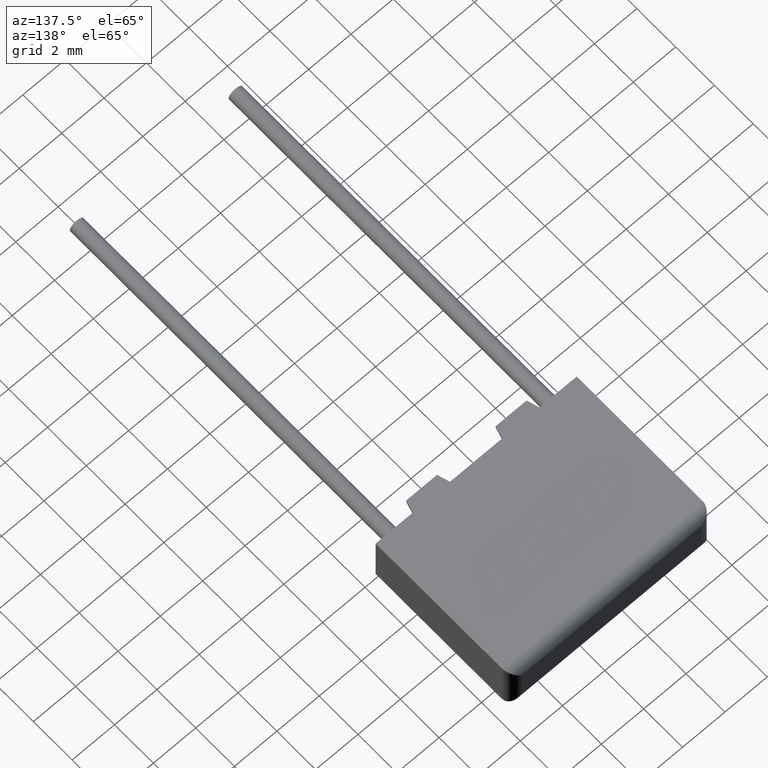
[diagram: clean part render]
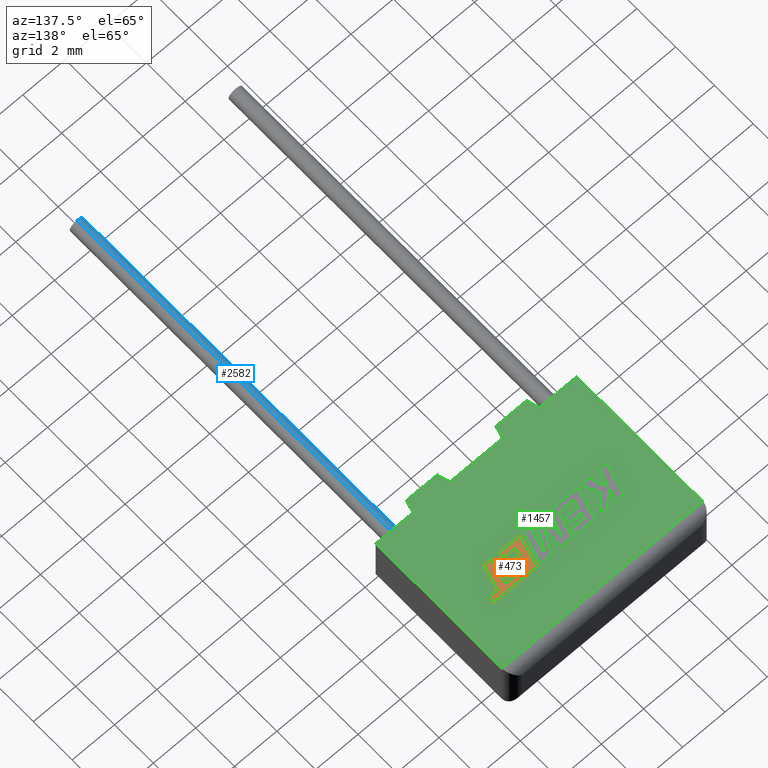
[diagram: same view with three faces highlighted in distinct colors, each labeled with its STEP entity id]
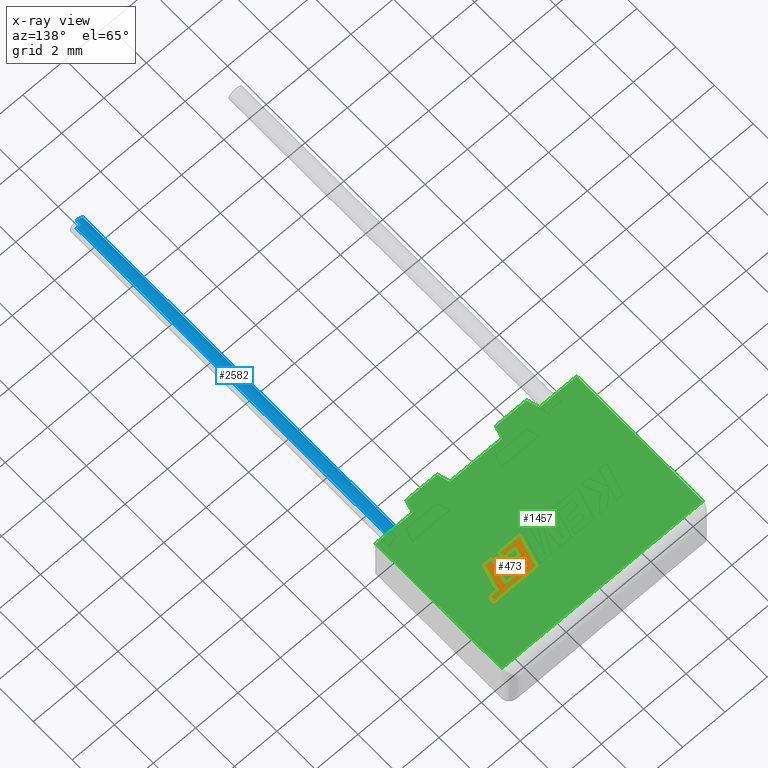
[diagram: x-ray of the same camera — body ghosted, the three highlighted faces saturated]
A machine part, auxiliary view with three faces highlighted in distinct colors.
The next image is the same camera in x-ray (body ghosted, the three faces saturated) — at least one of them is partly hidden behind the body in this view.
Their STEP definitions:

[orange] entity #473 — the highlighted planar face has unit normal (0, 0, 1).
#11 = CARTESIAN_POINT ( 'NONE',  ( 6.928004997878496800, 3.166099999999960200, 2.504999999999999900 ) ) ;
#21 = ORIENTED_EDGE ( 'NONE', *, *, #2717, .T. ) ;
#27 = VERTEX_POINT ( 'NONE', #2120 ) ;
#31 = VECTOR ( 'NONE', #897, 1000.000000000000200 ) ;
#52 = DIRECTION ( 'NONE',  ( 1.000000000000000000, 0.0000000000000000000, 0.0000000000000000000 ) ) ;
#53 = VERTEX_POINT ( 'NONE', #383 ) ;
#86 = CARTESIAN_POINT ( 'NONE',  ( 6.250906301396633500, 4.199902781669781100, 2.504999999999999900 ) ) ;
#165 = LINE ( 'NONE', #3054, #1641 ) ;
#171 = ORIENTED_EDGE ( 'NONE', *, *, #2353, .T. ) ;
#186 = VERTEX_POINT ( 'NONE', #1451 ) ;
#235 = VECTOR ( 'NONE', #1426, 1000.000000000000100 ) ;
#259 = VERTEX_POINT ( 'NONE', #2757 ) ;
#279 = VERTEX_POINT ( 'NONE', #1783 ) ;
#295 = ORIENTED_EDGE ( 'NONE', *, *, #1270, .T. ) ;
#322 = CARTESIAN_POINT ( 'NONE',  ( 6.555988191876494400, 3.166099999999960200, 2.504999999999999900 ) ) ;
#345 = DIRECTION ( 'NONE',  ( 0.9999960426590096500, -0.002813301676023192500, 0.0000000000000000000 ) ) ;
#367 = ORIENTED_EDGE ( 'NONE', *, *, #2116, .T. ) ;
#383 = CARTESIAN_POINT ( 'NONE',  ( 6.662346374928051600, 3.726388727316728200, 2.504999999999999900 ) ) ;
#389 = LINE ( 'NONE', #1882, #1112 ) ;
#392 = EDGE_CURVE ( 'NONE', #2368, #259, #3152, .T. ) ;
#432 = LINE ( 'NONE', #1402, #542 ) ;
#473 = ADVANCED_FACE ( 'NONE', ( #1997 ), #1640, .T. ) ;
#519 = DIRECTION ( 'NONE',  ( 0.2762033010287925900, 0.9610992334305538100, 0.0000000000000000000 ) ) ;
#542 = VECTOR ( 'NONE', #1668, 1000.000000000000200 ) ;
#563 = DIRECTION ( 'NONE',  ( 0.2729786930695575800, 0.9620200793798622300, 0.0000000000000000000 ) ) ;
#626 = ORIENTED_EDGE ( 'NONE', *, *, #1531, .T. ) ;
#627 = EDGE_CURVE ( 'NONE', #53, #3115, #2153, .T. ) ;
#648 = VECTOR ( 'NONE', #563, 1000.000000000000100 ) ;
#664 = EDGE_LOOP ( 'NONE', ( #940, #171, #2683, #367, #3079, #2987, #2825, #2523, #21, #2731, #626, #900, #1894, #3231, #3188, #1742, #295 ) ) ;
#715 = VECTOR ( 'NONE', #1639, 1000.000000000000000 ) ;
#757 = CARTESIAN_POINT ( 'NONE',  ( 6.729770489948595700, 3.962400307638313600, 2.504999999999999900 ) ) ;
#770 = CARTESIAN_POINT ( 'NONE',  ( 6.023863378549097400, 3.409076849371651500, 2.504999999999999900 ) ) ;
#773 = LINE ( 'NONE', #779, #1081 ) ;
#779 = CARTESIAN_POINT ( 'NONE',  ( 6.114450701574497800, 3.726388727316728200, 2.504999999999999900 ) ) ;
#812 = VERTEX_POINT ( 'NONE', #1974 ) ;
#825 = EDGE_CURVE ( 'NONE', #279, #1158, #165, .T. ) ;
#836 = CARTESIAN_POINT ( 'NONE',  ( 7.291744237761432300, 3.166099999999960200, 2.504999999999999900 ) ) ;
#839 = DIRECTION ( 'NONE',  ( 0.0000000000000000000, 0.0000000000000000000, 1.000000000000000000 ) ) ;
#876 = LINE ( 'NONE', #953, #235 ) ;
#877 = CARTESIAN_POINT ( 'NONE',  ( 6.023863378549097400, 3.409076849371651500, 2.504999999999999900 ) ) ;
#897 = DIRECTION ( 'NONE',  ( -0.2764273280489771800, -0.9610348236706634000, 0.0000000000000000000 ) ) ;
#899 = DIRECTION ( 'NONE',  ( -1.000000000000000000, 0.0000000000000000000, 0.0000000000000000000 ) ) ;
#900 = ORIENTED_EDGE ( 'NONE', *, *, #1303, .T. ) ;
#904 = EDGE_CURVE ( 'NONE', #1351, #53, #773, .T. ) ;
#913 = AXIS2_PLACEMENT_3D ( 'NONE', #2874, #839, #2897 ) ;
#927 = CARTESIAN_POINT ( 'NONE',  ( 6.662346374928051600, 3.726388727316728200, 2.504999999999999900 ) ) ;
#928 = EDGE_CURVE ( 'NONE', #1685, #812, #1871, .T. ) ;
#940 = ORIENTED_EDGE ( 'NONE', *, *, #392, .T. ) ;
#953 = CARTESIAN_POINT ( 'NONE',  ( 6.836051022286294000, 4.198256586531230500, 2.504999999999999900 ) ) ;
#991 = EDGE_CURVE ( 'NONE', #1700, #1832, #2599, .T. ) ;
#1081 = VECTOR ( 'NONE', #52, 1000.000000000000000 ) ;
#1112 = VECTOR ( 'NONE', #899, 1000.000000000000000 ) ;
#1113 = CARTESIAN_POINT ( 'NONE',  ( 8.008359383655495400, 4.442996107114993300, 2.504999999999999900 ) ) ;
#1158 = VERTEX_POINT ( 'NONE', #1113 ) ;
#1270 = EDGE_CURVE ( 'NONE', #2968, #2368, #432, .T. ) ;
#1299 = LINE ( 'NONE', #2157, #31 ) ;
#1303 = EDGE_CURVE ( 'NONE', #1925, #2075, #1475, .T. ) ;
#1341 = LINE ( 'NONE', #1510, #2226 ) ;
#1346 = DIRECTION ( 'NONE',  ( 0.2745159998572696500, 0.9615825319869135700, 0.0000000000000000000 ) ) ;
#1351 = VERTEX_POINT ( 'NONE', #2516 ) ;
#1402 = CARTESIAN_POINT ( 'NONE',  ( 6.181797165880968100, 3.962400307638313600, 2.504999999999999900 ) ) ;
#1426 = DIRECTION ( 'NONE',  ( 0.9999891854650020400, -0.004650693823678666100, 0.0000000000000000000 ) ) ;
#1432 = DIRECTION ( 'NONE',  ( 0.9999999968487352000, -7.938847109813094300E-005, 0.0000000000000000000 ) ) ;
#1451 = CARTESIAN_POINT ( 'NONE',  ( 7.224242472026946700, 4.196451207429181100, 2.504999999999999900 ) ) ;
#1475 = LINE ( 'NONE', #2934, #2024 ) ;
#1510 = CARTESIAN_POINT ( 'NONE',  ( 7.224242472026946700, 4.196451207429181100, 2.504999999999999900 ) ) ;
#1531 = EDGE_CURVE ( 'NONE', #812, #1925, #2312, .T. ) ;
#1639 = DIRECTION ( 'NONE',  ( -1.000000000000000000, 0.0000000000000000000, 0.0000000000000000000 ) ) ;
#1640 = PLANE ( 'NONE',  #913 ) ;
#1641 = VECTOR ( 'NONE', #519, 1000.000000000000000 ) ;
#1667 = VECTOR ( 'NONE', #2125, 1000.000000000000000 ) ;
#1668 = DIRECTION ( 'NONE',  ( 0.2793947940814911500, 0.9601763114346036900, 0.0000000000000000000 ) ) ;
#1669 = LINE ( 'NONE', #877, #2941 ) ;
#1685 = VERTEX_POINT ( 'NONE', #2102 ) ;
#1700 = VERTEX_POINT ( 'NONE', #2605 ) ;
#1742 = ORIENTED_EDGE ( 'NONE', *, *, #2813, .T. ) ;
#1780 = EDGE_CURVE ( 'NONE', #1158, #27, #389, .T. ) ;
#1783 = CARTESIAN_POINT ( 'NONE',  ( 7.937498666433691100, 4.196423453028154800, 2.504999999999999900 ) ) ;
#1811 = LINE ( 'NONE', #2612, #2303 ) ;
#1821 = DIRECTION ( 'NONE',  ( -0.2763173343569912400, -0.9610664548998924000, 0.0000000000000000000 ) ) ;
#1832 = VERTEX_POINT ( 'NONE', #2985 ) ;
#1852 = CARTESIAN_POINT ( 'NONE',  ( 5.591255720364100200, 3.166099999999960200, 2.504999999999999900 ) ) ;
#1871 = LINE ( 'NONE', #1852, #2715 ) ;
#1882 = CARTESIAN_POINT ( 'NONE',  ( 8.008359383655495400, 4.442996107114993300, 2.504999999999999900 ) ) ;
#1894 = ORIENTED_EDGE ( 'NONE', *, *, #2617, .T. ) ;
#1925 = VERTEX_POINT ( 'NONE', #2185 ) ;
#1974 = CARTESIAN_POINT ( 'NONE',  ( 6.555988191876494400, 3.166099999999960200, 2.504999999999999900 ) ) ;
#1997 = FACE_OUTER_BOUND ( 'NONE', #664, .T. ) ;
#2024 = VECTOR ( 'NONE', #2437, 1000.000000000000000 ) ;
#2075 = VERTEX_POINT ( 'NONE', #770 ) ;
#2102 = CARTESIAN_POINT ( 'NONE',  ( 5.591255720364100200, 3.166099999999960200, 2.504999999999999900 ) ) ;
#2107 = DIRECTION ( 'NONE',  ( 1.000000000000000000, 0.0000000000000000000, 0.0000000000000000000 ) ) ;
#2116 = EDGE_CURVE ( 'NONE', #2167, #1700, #2341, .T. ) ;
#2120 = CARTESIAN_POINT ( 'NONE',  ( 5.958535833833648700, 4.442996107114993300, 2.504999999999999900 ) ) ;
#2125 = DIRECTION ( 'NONE',  ( 1.000000000000000000, 0.0000000000000000000, 0.0000000000000000000 ) ) ;
#2153 = LINE ( 'NONE', #927, #2917 ) ;
#2157 = CARTESIAN_POINT ( 'NONE',  ( 5.958535833833648700, 4.442996107114993300, 2.504999999999999900 ) ) ;
#2167 = VERTEX_POINT ( 'NONE', #11 ) ;
#2185 = CARTESIAN_POINT ( 'NONE',  ( 6.624934260892433500, 3.409076849371651500, 2.504999999999999900 ) ) ;
#2195 = DIRECTION ( 'NONE',  ( 0.2746918797667246600, 0.9615323037684294600, 0.0000000000000000000 ) ) ;
#2226 = VECTOR ( 'NONE', #1821, 999.9999999999998900 ) ;
#2241 = CARTESIAN_POINT ( 'NONE',  ( 6.181797165880968100, 3.962400307638313600, 2.504999999999999900 ) ) ;
#2303 = VECTOR ( 'NONE', #1432, 1000.000000000000200 ) ;
#2312 = LINE ( 'NONE', #322, #648 ) ;
#2341 = LINE ( 'NONE', #3076, #1667 ) ;
#2353 = EDGE_CURVE ( 'NONE', #259, #186, #876, .T. ) ;
#2368 = VERTEX_POINT ( 'NONE', #3181 ) ;
#2437 = DIRECTION ( 'NONE',  ( -1.000000000000000000, 0.0000000000000000000, 0.0000000000000000000 ) ) ;
#2484 = VECTOR ( 'NONE', #345, 999.9999999999998900 ) ;
#2506 = EDGE_CURVE ( 'NONE', #186, #2167, #1341, .T. ) ;
#2516 = CARTESIAN_POINT ( 'NONE',  ( 6.114450701574497800, 3.726388727316728200, 2.504999999999999900 ) ) ;
#2517 = VECTOR ( 'NONE', #2607, 1000.000000000000100 ) ;
#2523 = ORIENTED_EDGE ( 'NONE', *, *, #1780, .T. ) ;
#2599 = LINE ( 'NONE', #836, #2517 ) ;
#2605 = CARTESIAN_POINT ( 'NONE',  ( 7.291744237761432300, 3.166099999999960200, 2.504999999999999900 ) ) ;
#2607 = DIRECTION ( 'NONE',  ( 0.2762437428917420800, 0.9610876102172794000, 0.0000000000000000000 ) ) ;
#2612 = CARTESIAN_POINT ( 'NONE',  ( 7.587896296123752800, 4.196451207425912600, 2.504999999999999900 ) ) ;
#2617 = EDGE_CURVE ( 'NONE', #2075, #1351, #1669, .T. ) ;
#2683 = ORIENTED_EDGE ( 'NONE', *, *, #2506, .T. ) ;
#2715 = VECTOR ( 'NONE', #2107, 1000.000000000000000 ) ;
#2717 = EDGE_CURVE ( 'NONE', #27, #1685, #1299, .T. ) ;
#2731 = ORIENTED_EDGE ( 'NONE', *, *, #928, .T. ) ;
#2738 = LINE ( 'NONE', #2829, #715 ) ;
#2757 = CARTESIAN_POINT ( 'NONE',  ( 6.836051022286294000, 4.198256586531230500, 2.504999999999999900 ) ) ;
#2813 = EDGE_CURVE ( 'NONE', #3115, #2968, #2738, .T. ) ;
#2825 = ORIENTED_EDGE ( 'NONE', *, *, #825, .T. ) ;
#2829 = CARTESIAN_POINT ( 'NONE',  ( 6.729770489948595700, 3.962400307638313600, 2.504999999999999900 ) ) ;
#2874 = CARTESIAN_POINT ( 'NONE',  ( 0.04312138960717629800, -3.919304190165553400, 2.504999999999999900 ) ) ;
#2897 = DIRECTION ( 'NONE',  ( 1.000000000000000000, 0.0000000000000000000, 0.0000000000000000000 ) ) ;
#2917 = VECTOR ( 'NONE', #2195, 1000.000000000000000 ) ;
#2934 = CARTESIAN_POINT ( 'NONE',  ( 6.624934260892433500, 3.409076849371651500, 2.504999999999999900 ) ) ;
#2941 = VECTOR ( 'NONE', #1346, 1000.000000000000100 ) ;
#2968 = VERTEX_POINT ( 'NONE', #2241 ) ;
#2985 = CARTESIAN_POINT ( 'NONE',  ( 7.587896296123752800, 4.196451207425912600, 2.504999999999999900 ) ) ;
#2987 = ORIENTED_EDGE ( 'NONE', *, *, #3064, .T. ) ;
#3054 = CARTESIAN_POINT ( 'NONE',  ( 7.937498666433691100, 4.196423453028154800, 2.504999999999999900 ) ) ;
#3064 = EDGE_CURVE ( 'NONE', #1832, #279, #1811, .T. ) ;
#3076 = CARTESIAN_POINT ( 'NONE',  ( 6.928004997878496800, 3.166099999999960200, 2.504999999999999900 ) ) ;
#3079 = ORIENTED_EDGE ( 'NONE', *, *, #991, .T. ) ;
#3115 = VERTEX_POINT ( 'NONE', #757 ) ;
#3152 = LINE ( 'NONE', #86, #2484 ) ;
#3181 = CARTESIAN_POINT ( 'NONE',  ( 6.250906301396633500, 4.199902781669781100, 2.504999999999999900 ) ) ;
#3188 = ORIENTED_EDGE ( 'NONE', *, *, #627, .T. ) ;
#3231 = ORIENTED_EDGE ( 'NONE', *, *, #904, .T. ) ;

[blue] entity #2582 — the highlighted cylindrical surface (edge-blend (fillet) strip) has radius 0.325 mm, axis along (-0, 1, -0).
#170 = LINE ( 'NONE', #418, #583 ) ;
#192 = DIRECTION ( 'NONE',  ( 0.0000000000000000000, 0.0000000000000000000, -1.000000000000000000 ) ) ;
#202 = DIRECTION ( 'NONE',  ( -0.0000000000000000000, 1.000000000000000000, -0.0000000000000000000 ) ) ;
#231 = AXIS2_PLACEMENT_3D ( 'NONE', #1388, #202, #192 ) ;
#418 = CARTESIAN_POINT ( 'NONE',  ( 8.500000000000000000, -16.50000000000000000, 0.9249999999999998200 ) ) ;
#566 = CIRCLE ( 'NONE', #2340, 0.3250000000000000100 ) ;
#583 = VECTOR ( 'NONE', #962, 1000.000000000000000 ) ;
#624 = VECTOR ( 'NONE', #1699, 1000.000000000000000 ) ;
#662 = EDGE_CURVE ( 'NONE', #1065, #778, #3078, .T. ) ;
#679 = EDGE_CURVE ( 'NONE', #3030, #2604, #170, .T. ) ;
#778 = VERTEX_POINT ( 'NONE', #1459 ) ;
#843 = DIRECTION ( 'NONE',  ( 0.0000000000000000000, 0.0000000000000000000, 1.000000000000000000 ) ) ;
#870 = CARTESIAN_POINT ( 'NONE',  ( 8.500000000000000000, -16.50000000000000000, 1.574999999999999700 ) ) ;
#962 = DIRECTION ( 'NONE',  ( -0.0000000000000000000, 1.000000000000000000, -0.0000000000000000000 ) ) ;
#1065 = VERTEX_POINT ( 'NONE', #870 ) ;
#1321 = ORIENTED_EDGE ( 'NONE', *, *, #679, .F. ) ;
#1388 = CARTESIAN_POINT ( 'NONE',  ( 8.500000000000000000, -16.50000000000000000, 1.249999999999999800 ) ) ;
#1414 = CIRCLE ( 'NONE', #231, 0.3250000000000000100 ) ;
#1459 = CARTESIAN_POINT ( 'NONE',  ( 8.500000000000000000, 0.0000000000000000000, 1.574999999999999700 ) ) ;
#1586 = CARTESIAN_POINT ( 'NONE',  ( 8.500000000000000000, -16.50000000000000000, 0.9249999999999998200 ) ) ;
#1699 = DIRECTION ( 'NONE',  ( -0.0000000000000000000, 1.000000000000000000, -0.0000000000000000000 ) ) ;
#1743 = CARTESIAN_POINT ( 'NONE',  ( 8.500000000000000000, 0.0000000000000000000, 1.249999999999999800 ) ) ;
#1774 = DIRECTION ( 'NONE',  ( 0.0000000000000000000, 0.0000000000000000000, -1.000000000000000000 ) ) ;
#1809 = ORIENTED_EDGE ( 'NONE', *, *, #3059, .F. ) ;
#1897 = CARTESIAN_POINT ( 'NONE',  ( 8.500000000000000000, 0.0000000000000000000, 0.9249999999999998200 ) ) ;
#2207 = ORIENTED_EDGE ( 'NONE', *, *, #662, .T. ) ;
#2274 = DIRECTION ( 'NONE',  ( -0.0000000000000000000, 1.000000000000000000, -0.0000000000000000000 ) ) ;
#2340 = AXIS2_PLACEMENT_3D ( 'NONE', #1743, #2274, #1774 ) ;
#2367 = DIRECTION ( 'NONE',  ( -0.0000000000000000000, 1.000000000000000000, -0.0000000000000000000 ) ) ;
#2385 = FACE_OUTER_BOUND ( 'NONE', #3154, .T. ) ;
#2582 = ADVANCED_FACE ( 'NONE', ( #2385 ), #2786, .T. ) ;
#2604 = VERTEX_POINT ( 'NONE', #1897 ) ;
#2682 = EDGE_CURVE ( 'NONE', #3030, #1065, #1414, .T. ) ;
#2786 = CYLINDRICAL_SURFACE ( 'NONE', #3147, 0.3250000000000000100 ) ;
#2826 = ORIENTED_EDGE ( 'NONE', *, *, #2682, .T. ) ;
#3030 = VERTEX_POINT ( 'NONE', #1586 ) ;
#3059 = EDGE_CURVE ( 'NONE', #2604, #778, #566, .T. ) ;
#3078 = LINE ( 'NONE', #3208, #624 ) ;
#3128 = CARTESIAN_POINT ( 'NONE',  ( 8.500000000000000000, -16.50000000000000000, 1.249999999999999800 ) ) ;
#3147 = AXIS2_PLACEMENT_3D ( 'NONE', #3128, #2367, #843 ) ;
#3154 = EDGE_LOOP ( 'NONE', ( #1321, #2826, #2207, #1809 ) ) ;
#3208 = CARTESIAN_POINT ( 'NONE',  ( 8.500000000000000000, -16.50000000000000000, 1.574999999999999700 ) ) ;

[green] entity #1457 — the highlighted planar face has unit normal (0, 0, -1).
#57 = VERTEX_POINT ( 'NONE', #2644 ) ;
#91 = LINE ( 'NONE', #101, #1014 ) ;
#101 = CARTESIAN_POINT ( 'NONE',  ( 0.0000000000000000000, 0.0000000000000000000, 2.500000000000000000 ) ) ;
#142 = EDGE_CURVE ( 'NONE', #479, #2309, #557, .T. ) ;
#233 = LINE ( 'NONE', #1598, #1625 ) ;
#242 = VECTOR ( 'NONE', #2664, 1000.000000000000000 ) ;
#297 = VERTEX_POINT ( 'NONE', #1753 ) ;
#305 = CARTESIAN_POINT ( 'NONE',  ( 6.136499999999999800, -0.4999999999999997800, 2.500000000000000000 ) ) ;
#408 = ORIENTED_EDGE ( 'NONE', *, *, #1225, .F. ) ;
#427 = EDGE_CURVE ( 'NONE', #508, #1368, #91, .T. ) ;
#463 = CARTESIAN_POINT ( 'NONE',  ( 6.136499999999999800, -0.4999999999999997800, 2.500000000000000000 ) ) ;
#477 = VECTOR ( 'NONE', #1749, 1000.000000000000200 ) ;
#479 = VERTEX_POINT ( 'NONE', #1606 ) ;
#503 = VECTOR ( 'NONE', #1533, 1000.000000000000200 ) ;
#508 = VERTEX_POINT ( 'NONE', #1342 ) ;
#557 = LINE ( 'NONE', #933, #1213 ) ;
#581 = ORIENTED_EDGE ( 'NONE', *, *, #699, .T. ) ;
#610 = CARTESIAN_POINT ( 'NONE',  ( 1.909999999999999900, -0.4999999999999998900, 2.500000000000000000 ) ) ;
#699 = EDGE_CURVE ( 'NONE', #2319, #3005, #2356, .T. ) ;
#708 = ORIENTED_EDGE ( 'NONE', *, *, #2848, .T. ) ;
#769 = AXIS2_PLACEMENT_3D ( 'NONE', #1784, #3080, #2304 ) ;
#796 = VECTOR ( 'NONE', #1697, 1000.000000000000000 ) ;
#834 = DIRECTION ( 'NONE',  ( 1.000000000000000000, 7.459251272690088700E-017, 0.0000000000000000000 ) ) ;
#837 = LINE ( 'NONE', #2511, #503 ) ;
#844 = LINE ( 'NONE', #2657, #242 ) ;
#879 = ORIENTED_EDGE ( 'NONE', *, *, #2871, .T. ) ;
#933 = CARTESIAN_POINT ( 'NONE',  ( 7.589999999999999900, -0.4999999999999998900, 2.500000000000000000 ) ) ;
#985 = CARTESIAN_POINT ( 'NONE',  ( 0.0000000000000000000, 0.0000000000000000000, 2.500000000000000000 ) ) ;
#1000 = ORIENTED_EDGE ( 'NONE', *, *, #1079, .T. ) ;
#1014 = VECTOR ( 'NONE', #2815, 1000.000000000000000 ) ;
#1025 = ORIENTED_EDGE ( 'NONE', *, *, #2006, .T. ) ;
#1038 = PLANE ( 'NONE',  #769 ) ;
#1039 = LINE ( 'NONE', #610, #1978 ) ;
#1056 = VERTEX_POINT ( 'NONE', #2072 ) ;
#1079 = EDGE_CURVE ( 'NONE', #1056, #1203, #844, .T. ) ;
#1110 = DIRECTION ( 'NONE',  ( -0.0000000000000000000, -1.000000000000000000, -0.0000000000000000000 ) ) ;
#1167 = VERTEX_POINT ( 'NONE', #2383 ) ;
#1203 = VERTEX_POINT ( 'NONE', #1440 ) ;
#1213 = VECTOR ( 'NONE', #3242, 1000.000000000000000 ) ;
#1221 = CARTESIAN_POINT ( 'NONE',  ( 3.363500000000000200, -0.4999999999999997800, 2.500000000000000000 ) ) ;
#1225 = EDGE_CURVE ( 'NONE', #2309, #297, #2433, .T. ) ;
#1261 = VECTOR ( 'NONE', #2594, 1000.000000000000200 ) ;
#1287 = ORIENTED_EDGE ( 'NONE', *, *, #142, .F. ) ;
#1296 = LINE ( 'NONE', #985, #2089 ) ;
#1342 = CARTESIAN_POINT ( 'NONE',  ( 7.740000000000000200, 0.0000000000000000000, 2.500000000000000000 ) ) ;
#1368 = VERTEX_POINT ( 'NONE', #1462 ) ;
#1425 = CARTESIAN_POINT ( 'NONE',  ( 0.0000000000000000000, 0.0000000000000000000, 2.500000000000000000 ) ) ;
#1440 = CARTESIAN_POINT ( 'NONE',  ( 0.0000000000000000000, 6.500000000000000900, 2.500000000000000000 ) ) ;
#1457 = ADVANCED_FACE ( 'NONE', ( #2508 ), #1038, .F. ) ;
#1462 = CARTESIAN_POINT ( 'NONE',  ( 9.500000000000000000, 0.0000000000000000000, 2.500000000000000000 ) ) ;
#1502 = LINE ( 'NONE', #2739, #2305 ) ;
#1515 = DIRECTION ( 'NONE',  ( 1.000000000000000000, 0.0000000000000000000, 0.0000000000000000000 ) ) ;
#1533 = DIRECTION ( 'NONE',  ( 0.2873478855663453300, -0.9578262852211513200, 0.0000000000000000000 ) ) ;
#1598 = CARTESIAN_POINT ( 'NONE',  ( 0.0000000000000000000, 0.0000000000000000000, 2.500000000000000000 ) ) ;
#1606 = CARTESIAN_POINT ( 'NONE',  ( 7.589999999999999900, -0.4999999999999998900, 2.500000000000000000 ) ) ;
#1622 = LINE ( 'NONE', #3229, #796 ) ;
#1625 = VECTOR ( 'NONE', #1110, 1000.000000000000000 ) ;
#1680 = EDGE_CURVE ( 'NONE', #1167, #2319, #1039, .T. ) ;
#1697 = DIRECTION ( 'NONE',  ( 1.000000000000000000, 0.0000000000000000000, 0.0000000000000000000 ) ) ;
#1749 = DIRECTION ( 'NONE',  ( 0.2873478855663453300, 0.9578262852211513200, 0.0000000000000000000 ) ) ;
#1753 = CARTESIAN_POINT ( 'NONE',  ( 5.986499999999999500, 2.151398264402112600E-016, 2.500000000000000000 ) ) ;
#1784 = CARTESIAN_POINT ( 'NONE',  ( 0.0000000000000000000, 0.0000000000000000000, 2.500000000000000000 ) ) ;
#1823 = EDGE_LOOP ( 'NONE', ( #708, #1000, #2291, #2069, #1025, #2173, #581, #879, #408, #1287, #1921, #2046 ) ) ;
#1920 = CARTESIAN_POINT ( 'NONE',  ( 3.363500000000000200, -0.4999999999999997800, 2.500000000000000000 ) ) ;
#1921 = ORIENTED_EDGE ( 'NONE', *, *, #3202, .F. ) ;
#1978 = VECTOR ( 'NONE', #834, 1000.000000000000000 ) ;
#2006 = EDGE_CURVE ( 'NONE', #57, #1167, #837, .T. ) ;
#2046 = ORIENTED_EDGE ( 'NONE', *, *, #427, .T. ) ;
#2069 = ORIENTED_EDGE ( 'NONE', *, *, #2910, .T. ) ;
#2072 = CARTESIAN_POINT ( 'NONE',  ( 9.500000000000000000, 6.500000000000000900, 2.500000000000000000 ) ) ;
#2089 = VECTOR ( 'NONE', #1515, 1000.000000000000000 ) ;
#2105 = VECTOR ( 'NONE', #2216, 1000.000000000000200 ) ;
#2173 = ORIENTED_EDGE ( 'NONE', *, *, #1680, .T. ) ;
#2216 = DIRECTION ( 'NONE',  ( -0.2873478855663453300, 0.9578262852211513200, 0.0000000000000000000 ) ) ;
#2263 = LINE ( 'NONE', #3111, #1261 ) ;
#2291 = ORIENTED_EDGE ( 'NONE', *, *, #2556, .T. ) ;
#2304 = DIRECTION ( 'NONE',  ( -1.000000000000000000, 0.0000000000000000000, -0.0000000000000000000 ) ) ;
#2305 = VECTOR ( 'NONE', #2983, 1000.000000000000000 ) ;
#2309 = VERTEX_POINT ( 'NONE', #305 ) ;
#2319 = VERTEX_POINT ( 'NONE', #1920 ) ;
#2356 = LINE ( 'NONE', #1221, #477 ) ;
#2383 = CARTESIAN_POINT ( 'NONE',  ( 1.909999999999999900, -0.4999999999999998900, 2.500000000000000000 ) ) ;
#2433 = LINE ( 'NONE', #463, #2105 ) ;
#2508 = FACE_OUTER_BOUND ( 'NONE', #1823, .T. ) ;
#2511 = CARTESIAN_POINT ( 'NONE',  ( 1.760000000000000000, 1.077689183249673200E-016, 2.500000000000000000 ) ) ;
#2556 = EDGE_CURVE ( 'NONE', #1203, #3198, #233, .T. ) ;
#2594 = DIRECTION ( 'NONE',  ( -0.2873478855663453300, -0.9578262852211513200, 0.0000000000000000000 ) ) ;
#2644 = CARTESIAN_POINT ( 'NONE',  ( 1.760000000000000000, 0.0000000000000000000, 2.500000000000000000 ) ) ;
#2657 = CARTESIAN_POINT ( 'NONE',  ( 0.0000000000000000000, 6.500000000000000900, 2.500000000000000000 ) ) ;
#2664 = DIRECTION ( 'NONE',  ( -1.000000000000000000, 0.0000000000000000000, 0.0000000000000000000 ) ) ;
#2739 = CARTESIAN_POINT ( 'NONE',  ( 9.500000000000000000, 0.0000000000000000000, 2.500000000000000000 ) ) ;
#2776 = CARTESIAN_POINT ( 'NONE',  ( 3.513500000000000100, 2.151398264402112600E-016, 2.500000000000000000 ) ) ;
#2815 = DIRECTION ( 'NONE',  ( 1.000000000000000000, 0.0000000000000000000, 0.0000000000000000000 ) ) ;
#2848 = EDGE_CURVE ( 'NONE', #1368, #1056, #1502, .T. ) ;
#2871 = EDGE_CURVE ( 'NONE', #3005, #297, #1622, .T. ) ;
#2910 = EDGE_CURVE ( 'NONE', #3198, #57, #1296, .T. ) ;
#2983 = DIRECTION ( 'NONE',  ( 0.0000000000000000000, 1.000000000000000000, 0.0000000000000000000 ) ) ;
#3005 = VERTEX_POINT ( 'NONE', #2776 ) ;
#3080 = DIRECTION ( 'NONE',  ( 0.0000000000000000000, 0.0000000000000000000, -1.000000000000000000 ) ) ;
#3111 = CARTESIAN_POINT ( 'NONE',  ( 7.739999999999999300, 1.077689183249673200E-016, 2.500000000000000000 ) ) ;
#3198 = VERTEX_POINT ( 'NONE', #1425 ) ;
#3202 = EDGE_CURVE ( 'NONE', #508, #479, #2263, .T. ) ;
#3229 = CARTESIAN_POINT ( 'NONE',  ( 0.0000000000000000000, 0.0000000000000000000, 2.500000000000000000 ) ) ;
#3242 = DIRECTION ( 'NONE',  ( -1.000000000000000000, 7.459251272690088700E-017, 0.0000000000000000000 ) ) ;